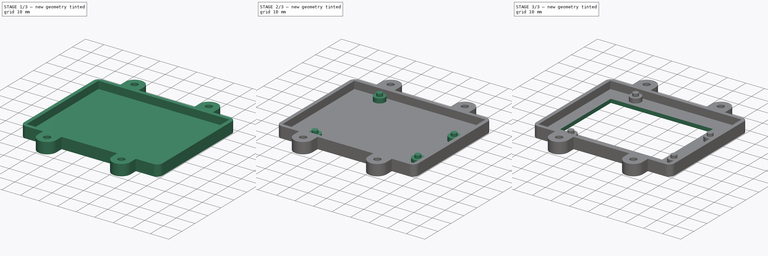
[diagram: build sequence overview — one tinted view per stage of 3, left to right]
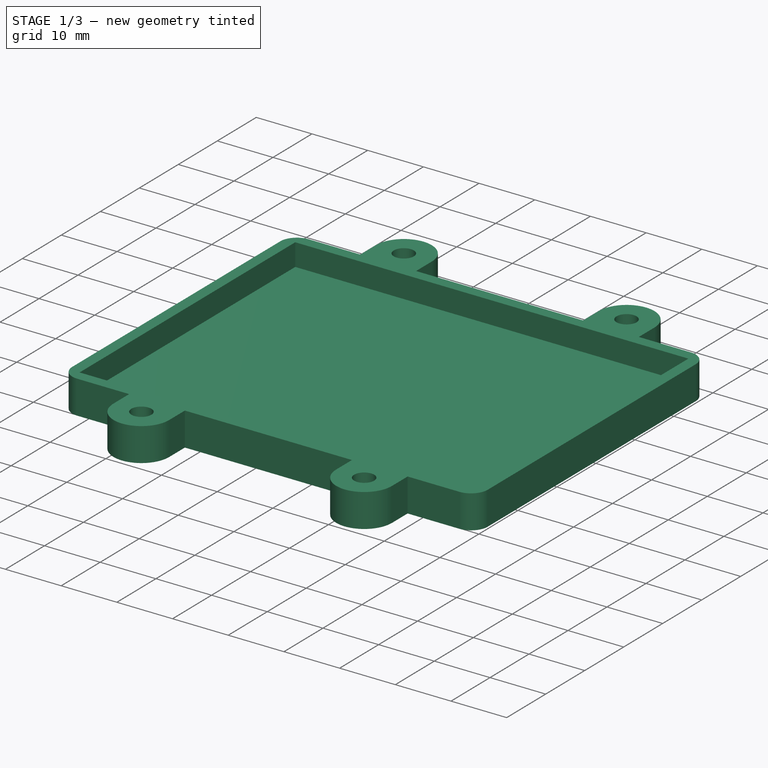
[diagram: stage 1 of 3 — iso view after this stage's code; geometry added in this stage tinted green]
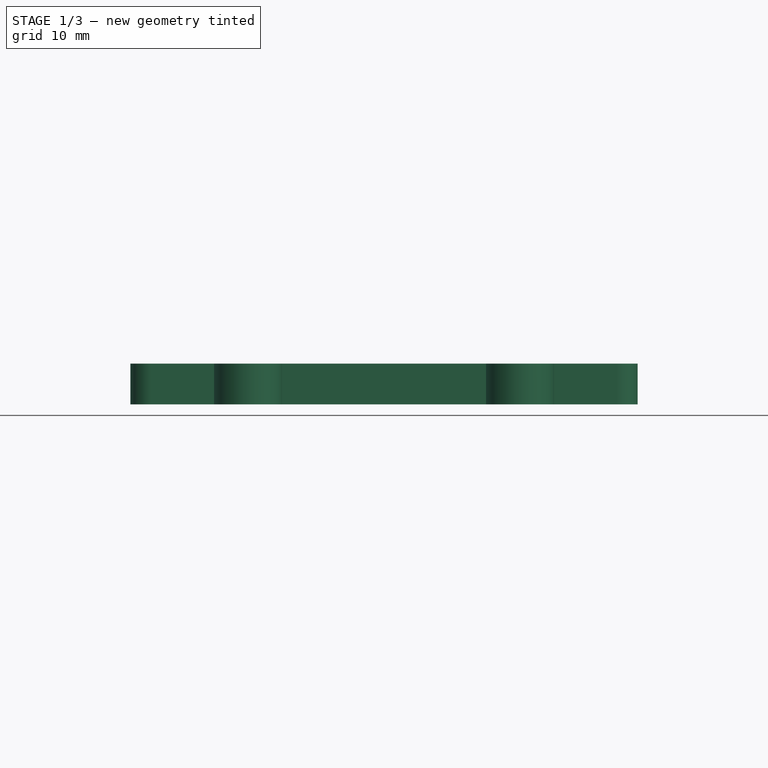
[diagram: stage 1 of 3 — front view after this stage's code; geometry added in this stage tinted green]
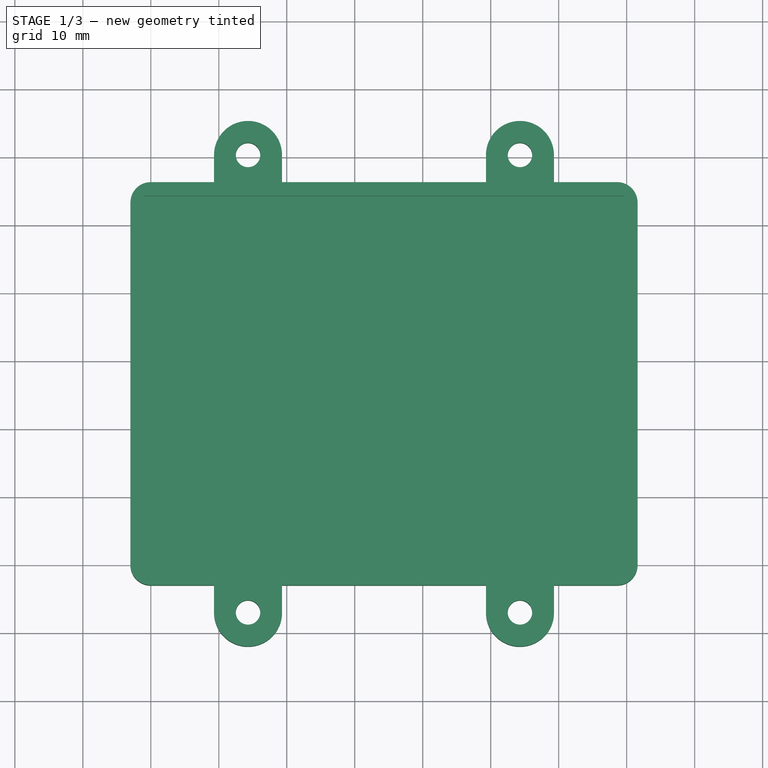
[diagram: stage 1 of 3 — top view after this stage's code; geometry added in this stage tinted green]
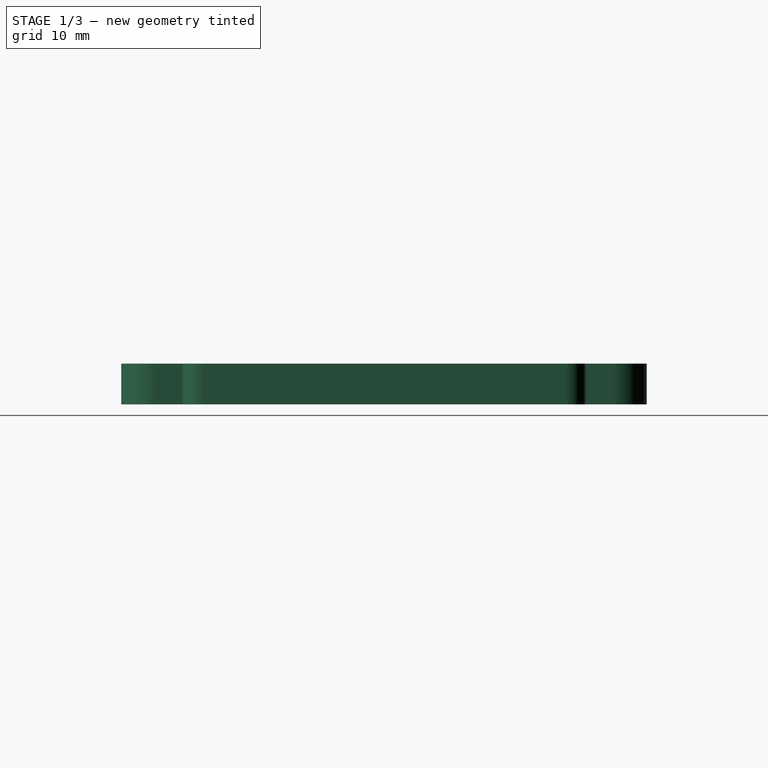
[diagram: stage 1 of 3 — right view after this stage's code; geometry added in this stage tinted green]
FCSTD DOCUMENT
Label: UnoCaseBottom
objects: Sketcher::SketchObject×7, PartDesign::Pocket×4, PartDesign::Pad×3
note: 17 computed .brp shape members not serialized (recipe doc carries the construction recipe); baked Part::Feature solids carry a one-line shape summary decoded from their .brp

FEATURE [Sketcher::SketchObject] Sketch
  sketch-geometry (44):
    g0: ArcOfCircle CenterX=0 CenterY=0 CenterZ=0 NormalX=0 NormalY=0 NormalZ=1 Radius=3 StartAngle=3.14159 EndAngle=4.71239
    g1: ArcOfCircle CenterX=0 CenterY=53.3 CenterZ=0 NormalX=0 NormalY=0 NormalZ=1 Radius=3 StartAngle=1.5708 EndAngle=3.14159
    g2: ArcOfCircle CenterX=68.6 CenterY=53.3 CenterZ=0 NormalX=0 NormalY=0 NormalZ=1 Radius=3 StartAngle=0 EndAngle=1.5708
    g3: ArcOfCircle CenterX=68.6 CenterY=0 CenterZ=0 NormalX=0 NormalY=0 NormalZ=1 Radius=3 StartAngle=4.71239 EndAngle=6.28319
    g4: LineSegment StartX=-3 StartY=53.3 StartZ=0 EndX=-3 EndY=0 EndZ=0
    g5: LineSegment [constr] StartX=68.6 StartY=-3 StartZ=0 EndX=68.6 EndY=0 EndZ=0
    g6: LineSegment [constr] StartX=68.6 StartY=0 StartZ=0 EndX=71.6 EndY=0 EndZ=0
    g7: LineSegment StartX=71.6 StartY=0 StartZ=0 EndX=71.6 EndY=53.3 EndZ=0
    g8: LineSegment [constr] StartX=71.6 StartY=53.3 StartZ=0 EndX=68.6 EndY=53.3 EndZ=0
    g9: LineSegment [constr] StartX=68.6 StartY=53.3 StartZ=0 EndX=68.6 EndY=56.3 EndZ=0
    g10: LineSegment [constr] StartX=0 StartY=56.3 StartZ=0 EndX=0 EndY=53.3 EndZ=0
    g11: LineSegment [constr] StartX=0 StartY=53.3 StartZ=0 EndX=-3 EndY=53.3 EndZ=0
    g12: LineSegment [constr] StartX=-3 StartY=0 StartZ=0 EndX=0 EndY=0 EndZ=0
    g13: LineSegment [constr] StartX=0 StartY=0 StartZ=0 EndX=0 EndY=-3 EndZ=0
    g14: LineSegment StartX=0 StartY=-3 StartZ=0 EndX=9.3 EndY=-3 EndZ=0
    g15: LineSegment StartX=9.3 StartY=-3 StartZ=0 EndX=9.3 EndY=-7 EndZ=0
    g16: LineSegment [constr] StartX=9.3 StartY=-7 StartZ=0 EndX=19.3 EndY=-7 EndZ=0
    g17: LineSegment StartX=19.3 StartY=-7 StartZ=0 EndX=19.3 EndY=-3 EndZ=0
    g18: LineSegment StartX=19.3 StartY=-3 StartZ=0 EndX=49.3 EndY=-3 EndZ=0
    g19: LineSegment StartX=49.3 StartY=-3 StartZ=0 EndX=49.3 EndY=-7 EndZ=0
    g20: LineSegment [constr] StartX=49.3 StartY=-7 StartZ=0 EndX=59.3 EndY=-7 EndZ=0
    g21: LineSegment StartX=59.3 StartY=-7 StartZ=0 EndX=59.3 EndY=-3 EndZ=0
    g22: LineSegment StartX=59.3 StartY=-3 StartZ=0 EndX=68.6 EndY=-3 EndZ=0
    g23: LineSegment [constr] StartX=49.3 StartY=-3 StartZ=0 EndX=59.3 EndY=-3 EndZ=0
    g24: LineSegment [constr] StartX=9.3 StartY=-3 StartZ=0 EndX=19.3 EndY=-3 EndZ=0
    g25: ArcOfCircle CenterX=54.3 CenterY=-7 CenterZ=0 NormalX=0 NormalY=0 NormalZ=1 Radius=5 StartAngle=3.14159 EndAngle=6.28319
    g26: ArcOfCircle CenterX=14.3 CenterY=-7 CenterZ=0 NormalX=0 NormalY=0 NormalZ=1 Radius=5 StartAngle=3.14159 EndAngle=6.28319
    g27: Circle CenterX=14.3 CenterY=-7 CenterZ=0 NormalX=0 NormalY=0 NormalZ=1 Radius=1.8
    g28: Circle CenterX=54.3 CenterY=-7 CenterZ=0 NormalX=0 NormalY=0 NormalZ=1 Radius=1.8
    g29: LineSegment StartX=0 StartY=56.3 StartZ=0 EndX=9.3 EndY=56.3 EndZ=0
    g30: LineSegment StartX=9.3 StartY=56.3 StartZ=0 EndX=9.3 EndY=60.3 EndZ=0
    g31: LineSegment [constr] StartX=9.3 StartY=60.3 StartZ=0 EndX=19.3 EndY=60.3 EndZ=0
    g32: LineSegment StartX=19.3 StartY=60.3 StartZ=0 EndX=19.3 EndY=56.3 EndZ=0
    g33: LineSegment StartX=19.3 StartY=56.3 StartZ=0 EndX=49.3 EndY=56.3 EndZ=0
    g34: LineSegment StartX=49.3 StartY=56.3 StartZ=0 EndX=49.3 EndY=60.3 EndZ=0
    g35: LineSegment [constr] StartX=49.3 StartY=60.3 StartZ=0 EndX=59.3 EndY=60.3 EndZ=0
    g36: LineSegment StartX=59.3 StartY=60.3 StartZ=0 EndX=59.3 EndY=56.3 EndZ=0
    g37: LineSegment StartX=59.3 StartY=56.3 StartZ=0 EndX=68.6 EndY=56.3 EndZ=0
    g38: LineSegment [constr] StartX=49.3 StartY=56.3 StartZ=0 EndX=59.3 EndY=56.3 EndZ=0
    g39: LineSegment [constr] StartX=9.3 StartY=56.3 StartZ=0 EndX=19.3 EndY=56.3 EndZ=0
    g40: ArcOfCircle CenterX=14.3 CenterY=60.3 CenterZ=0 NormalX=0 NormalY=0 NormalZ=1 Radius=5 StartAngle=0 EndAngle=3.14159
    g41: ArcOfCircle CenterX=54.3 CenterY=60.3 CenterZ=0 NormalX=0 NormalY=0 NormalZ=1 Radius=5 StartAngle=0 EndAngle=3.14159
    g42: Circle CenterX=54.3 CenterY=60.3 CenterZ=0 NormalX=0 NormalY=0 NormalZ=1 Radius=1.8
    g43: Circle CenterX=14.3 CenterY=60.3 CenterZ=0 NormalX=0 NormalY=0 NormalZ=1 Radius=1.8
  constraints (120):
    c: Coincident(g4,g1)
    c: Coincident(g4,g0)
    c: Vertical(g4)
    c: Coincident(g5,g3)
    c: Vertical(g5)
    c: Coincident(g5,g6)
    c: Coincident(g6,g3)
    c: Horizontal(g6)
    c: Coincident(g6,g7)
    c: Coincident(g7,g2)
    c: Vertical(g7)
    c: Coincident(g7,g8)
    c: Coincident(g8,g2)
    c: Horizontal(g8)
    c: Coincident(g8,g9)
    c: Coincident(g9,g2)
    c: Vertical(g9)
    c: Coincident(g10,g1)
    c: Vertical(g10)
    c: Coincident(g10,g11)
    c: Coincident(g11,g1)
    c: Horizontal(g11)
    c: Coincident(g12,g0)
    c: Coincident(g12,g0)
    c: Horizontal(g12)
    c: Coincident(g12,g13)
    c: Coincident(g13,g0)
    c: Vertical(g13)
    c: Equal(g3,g2)
    c: Equal(g2,g1)
    c: Equal(g1,g0)
    c: Radius(g0) = 3
    c: DistanceY(g0) = -3
    c: DistanceX(g0) = -3
    c: DistanceY(g2,g3) = -59.3
    c: DistanceX(g1,g2) = 74.6
    c: Horizontal(g14)
    c: Coincident(g14,g15)
    c: Vertical(g15)
    c: Coincident(g15,g16)
    c: Horizontal(g16)
    c: Coincident(g16,g17)
    c: Vertical(g17)
    c: Coincident(g17,g18)
    c: Horizontal(g18)
    c: Coincident(g18,g19)
    c: Vertical(g19)
    c: Coincident(g19,g20)
    c: Horizontal(g20)
    c: Coincident(g20,g21)
    c: Vertical(g21)
    c: Coincident(g21,g22)
    c: Horizontal(g22)
    c: Coincident(g23,g18)
    c: Coincident(g23,g21)
    c: Horizontal(g23)
    c: Coincident(g24,g14)
    c: Coincident(g24,g17)
    c: Horizontal(g24)
    c: PointOnObject(g25,g20)
    c: Coincident(g25,g19)
    c: Coincident(g25,g20)
    c: PointOnObject(g26,g16)
    c: Coincident(g26,g15)
    c: Coincident(g26,g16)
    c: Equal(g25,g26)
    c: Equal(g14,g22)
    c: Radius(g26) = 5
    c: DistanceY(g15) = -4
    c: Equal(g15,g19)
    c: Coincident(g14,g0)
    c: Coincident(g22,g3)
    c: Coincident(g5,g3)
    c: DistanceX(g26,g25) = 40
    c: Coincident(g27,g26)
    c: Coincident(g28,g25)
    c: Equal(g28,g27)
    c: Radius(g28) = 1.8
    c: Horizontal(g29)
    c: Coincident(g29,g30)
    c: Vertical(g30)
    c: Coincident(g30,g31)
    c: Horizontal(g31)
    c: Coincident(g31,g32)
    c: Vertical(g32)
    c: Coincident(g32,g33)
    c: Horizontal(g33)
    c: Coincident(g33,g34)
    c: Vertical(g34)
    c: Coincident(g34,g35)
    c: Horizontal(g35)
    c: Coincident(g35,g36)
    c: Vertical(g36)
    c: Coincident(g36,g37)
    c: Horizontal(g37)
    c: Coincident(g38,g33)
    c: Coincident(g38,g36)
    c: Horizontal(g38)
    c: Coincident(g39,g29)
    c: Coincident(g39,g32)
    c: Horizontal(g39)
    c: PointOnObject(g40,g31)
    c: Coincident(g40,g30)
    c: Coincident(g40,g31)
    c: PointOnObject(g41,g35)
    c: Coincident(g41,g34)
    c: Coincident(g41,g35)
    c: Equal(g34,g32)
    c: Equal(g29,g37)
    c: Equal(g40,g41)
    c: Radius(g40) = 5
    c: DistanceY(g30) = 4
    c: Coincident(g29,g1)
    c: Coincident(g10,g1)
    c: Coincident(g2,g37)
    c: DistanceX(g40,g41) = 40
    c: Coincident(g42,g41)
    c: Coincident(g43,g40)
    c: Equal(g43,g42)
    c: Equal(g42,g28)
FEATURE [PartDesign::Pad] Pad
  Length = 6
  MirroredExtent = false
  Sketch = -> Sketch
FEATURE [Sketcher::SketchObject] Sketch001
  Placement = pos=(0,0,6) rot=(0,0,1;0rad)
  Support = -> Pad [Face30]
  sketch-geometry (4):
    g0: LineSegment StartX=-1 StartY=-1 StartZ=0 EndX=69.6 EndY=-1 EndZ=0
    g1: LineSegment StartX=69.6 StartY=-1 StartZ=0 EndX=69.6 EndY=54.3 EndZ=0
    g2: LineSegment StartX=69.6 StartY=54.3 StartZ=0 EndX=-1 EndY=54.3 EndZ=0
    g3: LineSegment StartX=-1 StartY=54.3 StartZ=0 EndX=-1 EndY=-1 EndZ=0
  constraints (12):
    c: Coincident(g0,g1)
    c: Coincident(g1,g2)
    c: Coincident(g2,g3)
    c: Coincident(g3,g0)
    c: Horizontal(g0)
    c: Horizontal(g2)
    c: Vertical(g1)
    c: Vertical(g3)
    c: DistanceX(g2) = -70.6
    c: DistanceX(g0) = -1
    c: DistanceY(g0) = -1
    c: DistanceY(g1) = 55.3
FEATURE [PartDesign::Pocket] Pocket
  Length = 4
  Sketch = -> Sketch001
  Type = 0
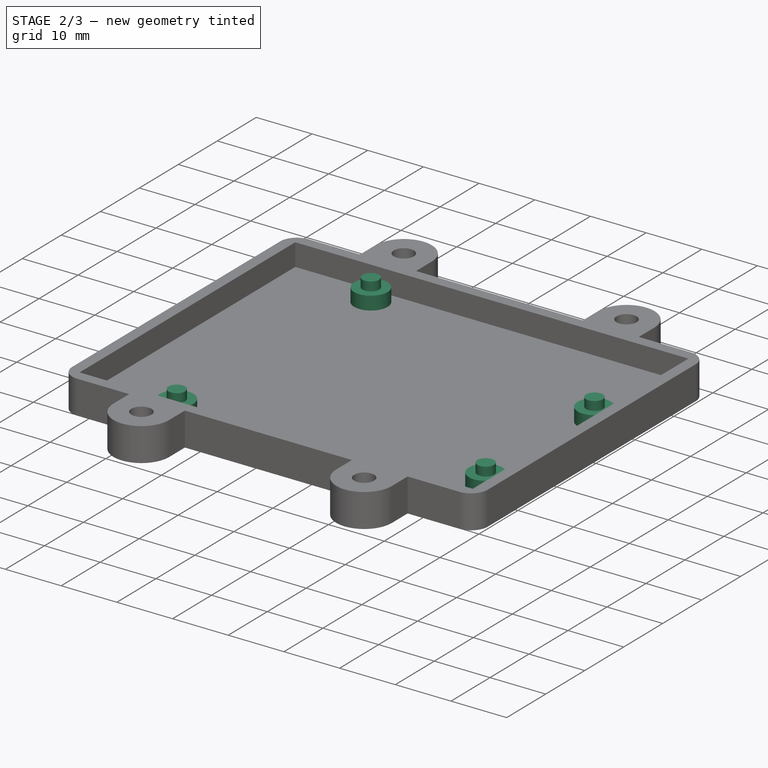
[diagram: stage 2 of 3 — iso view after this stage's code; geometry added in this stage tinted green]
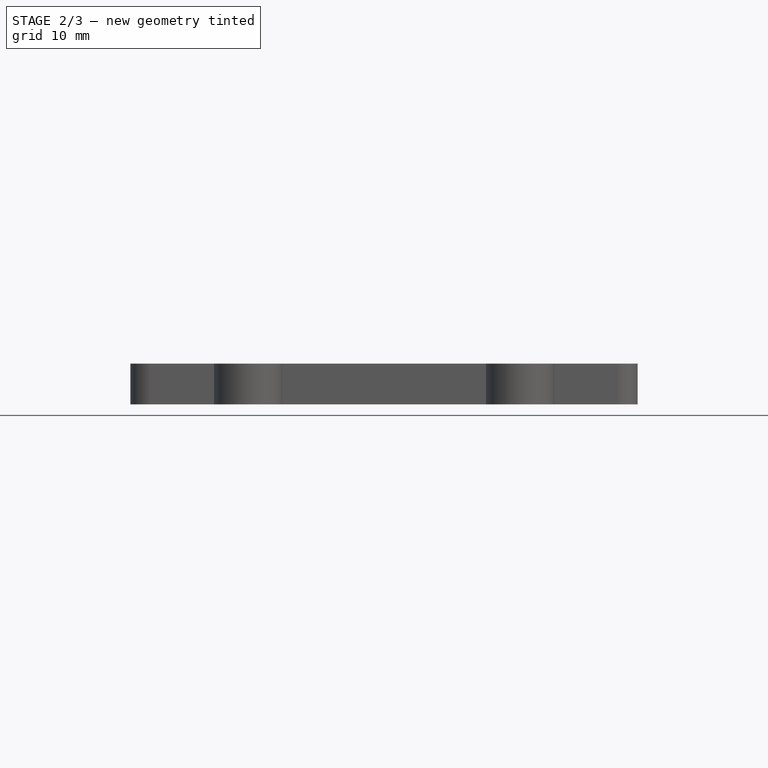
[diagram: stage 2 of 3 — front view after this stage's code; geometry added in this stage tinted green]
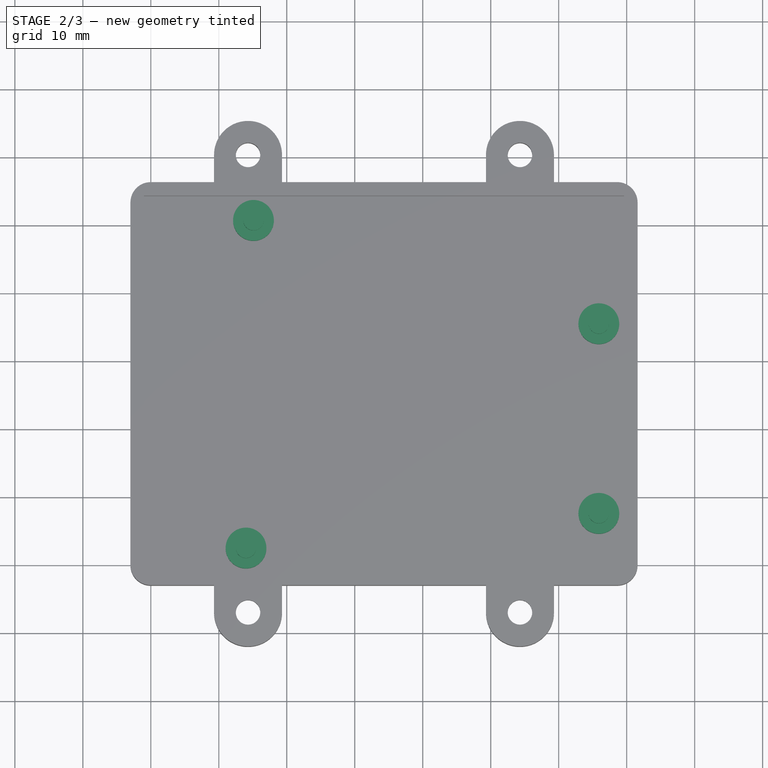
[diagram: stage 2 of 3 — top view after this stage's code; geometry added in this stage tinted green]
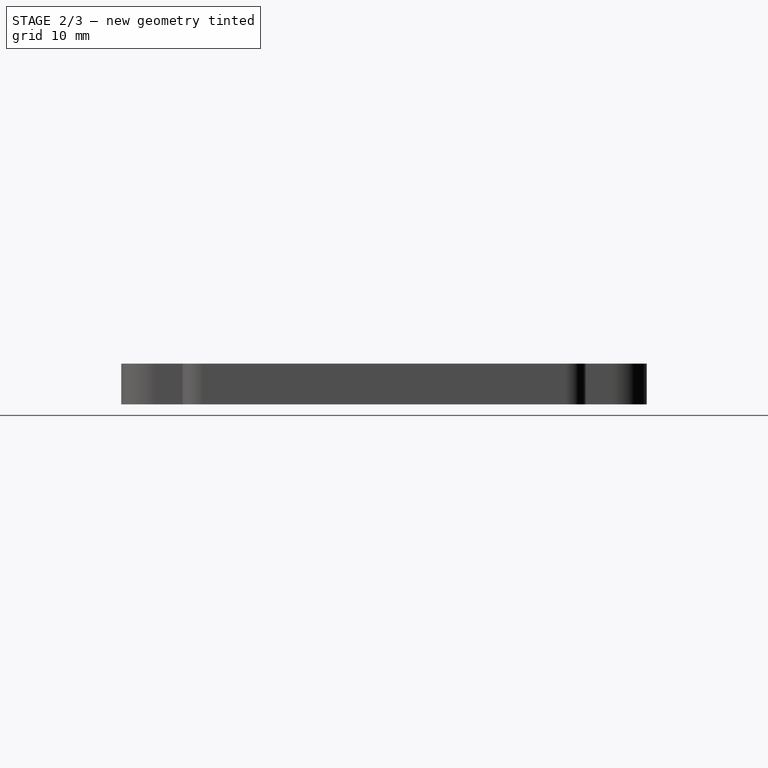
[diagram: stage 2 of 3 — right view after this stage's code; geometry added in this stage tinted green]
FEATURE [Sketcher::SketchObject] Sketch002
  Placement = pos=(0,0,2) rot=(0,0,1;0rad)
  Support = -> Pocket [Face35]
  sketch-geometry (5):
    g0: Circle CenterX=15.1 CenterY=50.7 CenterZ=0 NormalX=0 NormalY=0 NormalZ=1 Radius=3
    g1: Circle CenterX=14 CenterY=2.5 CenterZ=0 NormalX=0 NormalY=0 NormalZ=1 Radius=3
    g2: Circle CenterX=65.9 CenterY=35.5 CenterZ=0 NormalX=0 NormalY=0 NormalZ=1 Radius=3
    g3: Circle CenterX=65.9 CenterY=7.6 CenterZ=0 NormalX=0 NormalY=0 NormalZ=1 Radius=3
    g4: LineSegment [constr] StartX=65.9 StartY=35.5 StartZ=0 EndX=65.9 EndY=7.6 EndZ=0
  constraints (14):
    c: DistanceX(g1,g3) = 51.9
    c: DistanceX(g0,g2) = 50.8
    c: Equal(g0,g1)
    c: Equal(g1,g3)
    c: Equal(g3,g2)
    c: Radius(g0) = 3
    c: DistanceY(g2,g3) = -27.9
    c: DistanceY(g0,g2) = -15.2
    c: Coincident(g4,g3)
    c: Vertical(g4)
    c: Coincident(g2,g4)
    c: DistanceY(g1,g3) = 5.1
    c: DistanceX(g1) = 14
    c: DistanceY(g1) = 2.5
FEATURE [PartDesign::Pad] Pad001
  Length = 2.4
  MirroredExtent = false
  Sketch = -> Sketch002
FEATURE [Sketcher::SketchObject] Sketch003
  Placement = pos=(0,0,4.4) rot=(0,0,1;0rad)
  Support = -> Pad001 [Face42]
  sketch-geometry (5):
    g0: Circle CenterX=15.1 CenterY=50.7 CenterZ=0 NormalX=0 NormalY=0 NormalZ=1 Radius=1.5
    g1: Circle CenterX=14 CenterY=2.5 CenterZ=0 NormalX=0 NormalY=0 NormalZ=1 Radius=1.5
    g2: Circle CenterX=65.9 CenterY=35.5 CenterZ=0 NormalX=0 NormalY=0 NormalZ=1 Radius=1.5
    g3: Circle CenterX=65.9 CenterY=7.6 CenterZ=0 NormalX=0 NormalY=0 NormalZ=1 Radius=1.5
    g4: LineSegment [constr] StartX=65.9 StartY=35.5 StartZ=0 EndX=65.9 EndY=7.6 EndZ=0
  constraints (14):
    c: DistanceX(g1,g3) = 51.9
    c: DistanceX(g0,g2) = 50.8
    c: Equal(g0,g1)
    c: Equal(g1,g3)
    c: Equal(g3,g2)
    c: Radius(g0) = 1.5
    c: DistanceY(g2,g3) = -27.9
    c: DistanceY(g0,g2) = -15.2
    c: Coincident(g4,g3)
    c: Vertical(g4)
    c: Coincident(g2,g4)
    c: DistanceY(g1,g3) = 5.1
    c: DistanceX(g1) = 14
    c: DistanceY(g1) = 2.5
FEATURE [PartDesign::Pad] Pad002
  Length = 1.6
  MirroredExtent = false
  Sketch = -> Sketch003
FEATURE [Sketcher::SketchObject] Sketch004
  Placement = pos=(0,0,0) rot=(1,0,0;3.14159rad)
  Support = -> Pad002 [Face4]
  sketch-geometry (24):
    g0: LineSegment StartX=11.35 StartY=5.29682 StartZ=0 EndX=11.35 EndY=8.70318 EndZ=0
    g1: LineSegment StartX=11.35 StartY=8.70318 StartZ=0 EndX=14.3 EndY=10.4064 EndZ=0
    g2: LineSegment StartX=14.3 StartY=10.4064 StartZ=0 EndX=17.25 EndY=8.70318 EndZ=0
    g3: LineSegment StartX=17.25 StartY=8.70318 StartZ=0 EndX=17.25 EndY=5.29682 EndZ=0
    g4: LineSegment StartX=17.25 StartY=5.29682 StartZ=0 EndX=14.3 EndY=3.59363 EndZ=0
    g5: LineSegment StartX=14.3 StartY=3.59363 StartZ=0 EndX=11.35 EndY=5.29682 EndZ=0
    g6: LineSegment [constr] StartX=11.35 StartY=5.29682 StartZ=0 EndX=14.3 EndY=7 EndZ=0
    g7: LineSegment [constr] StartX=14.3 StartY=7 StartZ=0 EndX=17.25 EndY=5.29682 EndZ=0
    g8: LineSegment [constr] StartX=11.35 StartY=8.70318 StartZ=0 EndX=14.3 EndY=7 EndZ=0
    g9: LineSegment [constr] StartX=14.3 StartY=7 StartZ=0 EndX=17.25 EndY=8.70318 EndZ=0
    g10: LineSegment [constr] StartX=14.3 StartY=7 StartZ=0 EndX=14.3 EndY=3.59363 EndZ=0
    g11: LineSegment StartX=51.35 StartY=5.29682 StartZ=0 EndX=51.35 EndY=8.70318 EndZ=0
    g12: LineSegment StartX=51.35 StartY=8.70318 StartZ=0 EndX=54.3 EndY=10.4064 EndZ=0
    g13: LineSegment StartX=54.3 StartY=10.4064 StartZ=0 EndX=57.25 EndY=8.70318 EndZ=0
    g14: LineSegment StartX=57.25 StartY=8.70318 StartZ=0 EndX=57.25 EndY=5.29682 EndZ=0
    g15: LineSegment StartX=57.25 StartY=5.29682 StartZ=0 EndX=54.3 EndY=3.59363 EndZ=0
    g16: LineSegment StartX=54.3 StartY=3.59363 StartZ=0 EndX=51.35 EndY=5.29682 EndZ=0
    g17: LineSegment [constr] StartX=51.35 StartY=8.70318 StartZ=0 EndX=54.3 EndY=7 EndZ=0
    g18: LineSegment [constr] StartX=54.3 StartY=7 StartZ=0 EndX=57.25 EndY=8.70318 EndZ=0
    g19: LineSegment [constr] StartX=51.35 StartY=5.29682 StartZ=0 EndX=54.3 EndY=7 EndZ=0
    g20: LineSegment [constr] StartX=54.3 StartY=7 StartZ=0 EndX=57.25 EndY=5.29682 EndZ=0
    g21: LineSegment [constr] StartX=54.3 StartY=7 StartZ=0 EndX=54.3 EndY=3.59363 EndZ=0
    g22: LineSegment [constr] StartX=14.3 StartY=7 StartZ=0 EndX=34.3 EndY=7 EndZ=0
    g23: LineSegment [constr] StartX=34.3 StartY=7 StartZ=0 EndX=54.3 EndY=7 EndZ=0
  constraints (63):
    c: Vertical(g0)
    c: Coincident(g0,g1)
    c: Coincident(g1,g2)
    c: Coincident(g2,g3)
    c: Vertical(g3)
    c: Coincident(g3,g4)
    c: Coincident(g4,g5)
    c: Coincident(g5,g6)
    c: Coincident(g6,g7)
    c: Coincident(g7,g3)
    c: Coincident(g8,g0)
    c: Coincident(g8,g6)
    c: Coincident(g8,g9)
    c: Coincident(g9,g2)
    c: Coincident(g10,g6)
    c: Coincident(g10,g4)
    c: Vertical(g10)
    c: Equal(g8,g6)
    c: Equal(g6,g10)
    c: Equal(g10,g7)
    c: Equal(g7,g9)
    c: Coincident(g5,g0)
    c: Equal(g5,g4)
    c: Equal(g4,g3)
    c: Equal(g3,g2)
    c: Equal(g2,g1)
    c: DistanceX(g0,g3) = 5.9
    c: Vertical(g11)
    c: Coincident(g11,g12)
    c: Coincident(g12,g13)
    c: Coincident(g13,g14)
    c: Vertical(g14)
    c: Coincident(g14,g15)
    c: Coincident(g15,g16)
    c: Coincident(g16,g11)
    c: Coincident(g17,g11)
    c: Coincident(g17,g18)
    c: Coincident(g18,g13)
    c: Coincident(g19,g11)
    c: Coincident(g19,g17)
    c: Coincident(g19,g20)
    c: Coincident(g20,g14)
    c: Coincident(g21,g17)
    c: Coincident(g21,g15)
    c: Vertical(g21)
    c: Equal(g17,g19)
    c: Equal(g19,g21)
    c: Equal(g21,g20)
    c: Equal(g20,g18)
    c: Equal(g13,g12)
    c: Equal(g12,g11)
    c: Equal(g11,g16)
    c: Equal(g16,g14)
    c: DistanceX(g11,g14) = 5.9
    c: Coincident(g22,g6)
    c: Horizontal(g22)
    c: Coincident(g22,g23)
    c: Coincident(g23,g17)
    c: Horizontal(g23)
    c: Equal(g22,g23)
    c: DistanceX(g22) = 34.3
    c: DistanceY(g22) = 7
    c: DistanceX(g6,g17) = 40
FEATURE [PartDesign::Pocket] Pocket001
  Length = 3
  Sketch = -> Sketch004
  Type = 0
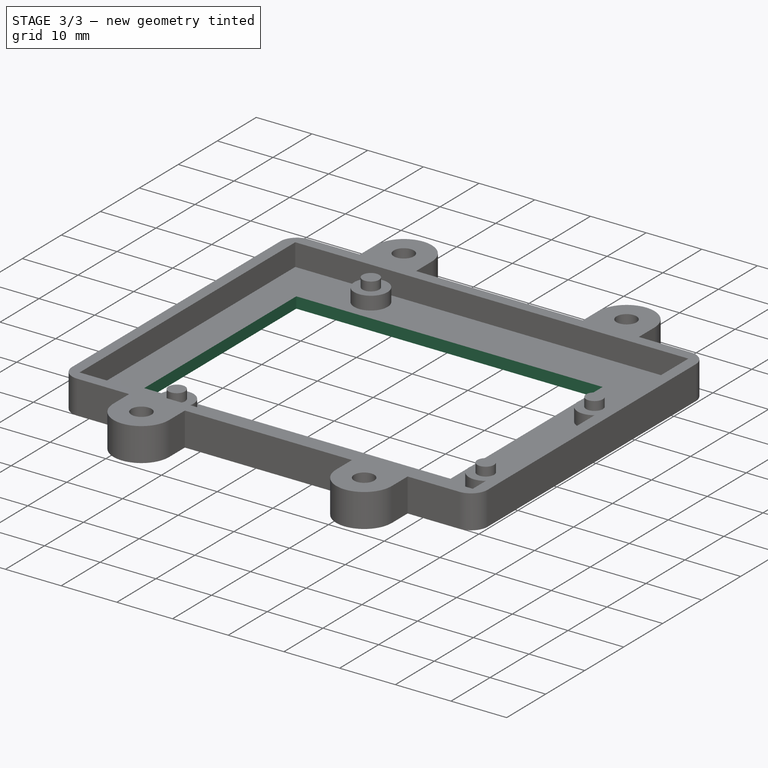
[diagram: stage 3 of 3 — iso view after this stage's code; geometry added in this stage tinted green]
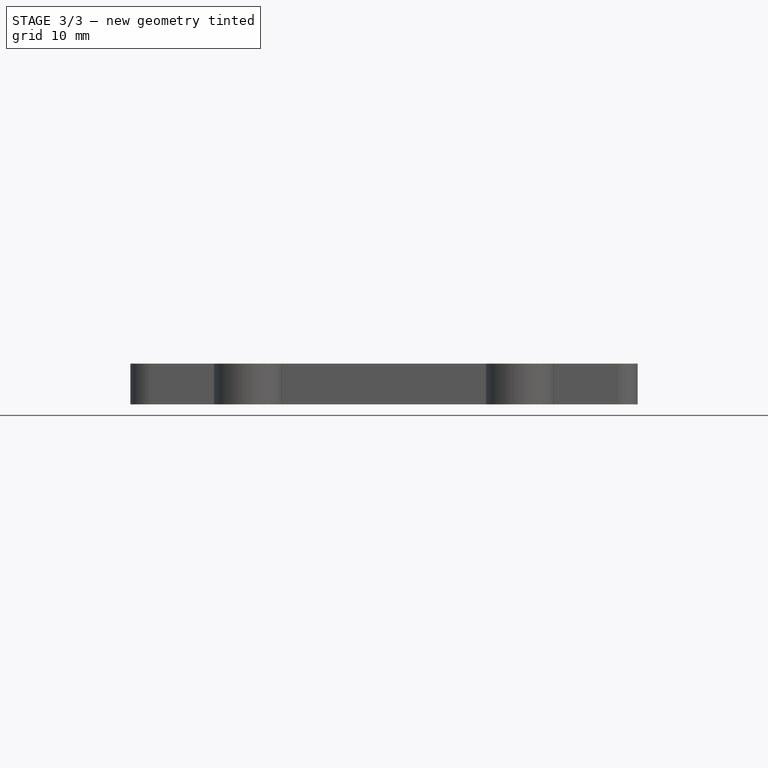
[diagram: stage 3 of 3 — front view after this stage's code; geometry added in this stage tinted green]
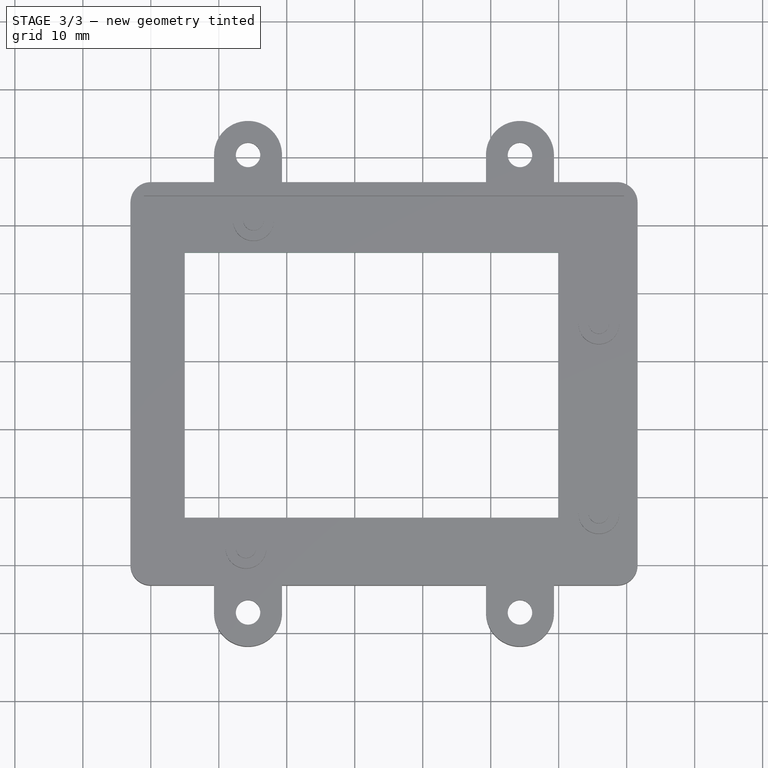
[diagram: stage 3 of 3 — top view after this stage's code; geometry added in this stage tinted green]
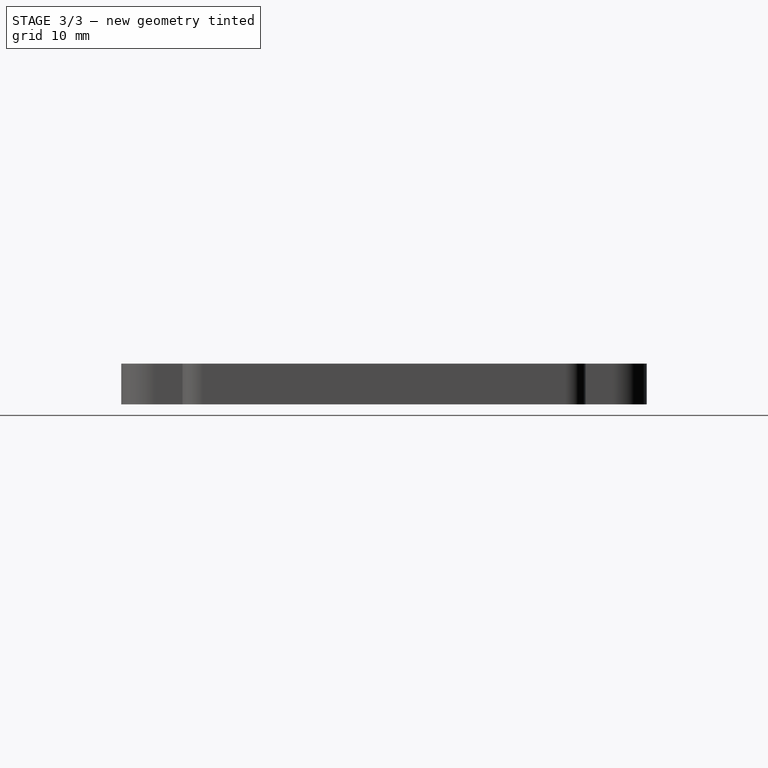
[diagram: stage 3 of 3 — right view after this stage's code; geometry added in this stage tinted green]
FEATURE [Sketcher::SketchObject] Sketch005
  Placement = pos=(0,0,0) rot=(1,0,0;3.14159rad)
  Support = -> Pocket001 [Face4]
  sketch-geometry (24):
    g0: LineSegment StartX=11.35 StartY=-62.0032 StartZ=0 EndX=11.35 EndY=-58.5968 EndZ=0
    g1: LineSegment StartX=11.35 StartY=-58.5968 StartZ=0 EndX=14.3 EndY=-56.8936 EndZ=0
    g2: LineSegment StartX=14.3 StartY=-56.8936 StartZ=0 EndX=17.25 EndY=-58.5968 EndZ=0
    g3: LineSegment StartX=17.25 StartY=-58.5968 StartZ=0 EndX=17.25 EndY=-62.0032 EndZ=0
    g4: LineSegment StartX=17.25 StartY=-62.0032 StartZ=0 EndX=14.3 EndY=-63.7064 EndZ=0
    g5: LineSegment StartX=14.3 StartY=-63.7064 StartZ=0 EndX=11.35 EndY=-62.0032 EndZ=0
    g6: LineSegment [constr] StartX=11.35 StartY=-62.0032 StartZ=0 EndX=14.3 EndY=-60.3 EndZ=0
    g7: LineSegment [constr] StartX=14.3 StartY=-60.3 StartZ=0 EndX=17.25 EndY=-62.0032 EndZ=0
    g8: LineSegment [constr] StartX=11.35 StartY=-58.5968 StartZ=0 EndX=14.3 EndY=-60.3 EndZ=0
    g9: LineSegment [constr] StartX=14.3 StartY=-60.3 StartZ=0 EndX=17.25 EndY=-58.5968 EndZ=0
    g10: LineSegment [constr] StartX=14.3 StartY=-60.3 StartZ=0 EndX=14.3 EndY=-63.7064 EndZ=0
    g11: LineSegment StartX=51.35 StartY=-62.0032 StartZ=0 EndX=51.35 EndY=-58.5968 EndZ=0
    g12: LineSegment StartX=51.35 StartY=-58.5968 StartZ=0 EndX=54.3 EndY=-56.8936 EndZ=0
    g13: LineSegment StartX=54.3 StartY=-56.8936 StartZ=0 EndX=57.25 EndY=-58.5968 EndZ=0
    g14: LineSegment StartX=57.25 StartY=-58.5968 StartZ=0 EndX=57.25 EndY=-62.0032 EndZ=0
    g15: LineSegment StartX=57.25 StartY=-62.0032 StartZ=0 EndX=54.3 EndY=-63.7064 EndZ=0
    g16: LineSegment StartX=54.3 StartY=-63.7064 StartZ=0 EndX=51.35 EndY=-62.0032 EndZ=0
    g17: LineSegment [constr] StartX=51.35 StartY=-58.5968 StartZ=0 EndX=54.3 EndY=-60.3 EndZ=0
    g18: LineSegment [constr] StartX=54.3 StartY=-60.3 StartZ=0 EndX=57.25 EndY=-58.5968 EndZ=0
    g19: LineSegment [constr] StartX=51.35 StartY=-62.0032 StartZ=0 EndX=54.3 EndY=-60.3 EndZ=0
    g20: LineSegment [constr] StartX=54.3 StartY=-60.3 StartZ=0 EndX=57.25 EndY=-62.0032 EndZ=0
    g21: LineSegment [constr] StartX=54.3 StartY=-60.3 StartZ=0 EndX=54.3 EndY=-63.7064 EndZ=0
    g22: LineSegment [constr] StartX=14.3 StartY=-60.3 StartZ=0 EndX=34.3 EndY=-60.3 EndZ=0
    g23: LineSegment [constr] StartX=34.3 StartY=-60.3 StartZ=0 EndX=54.3 EndY=-60.3 EndZ=0
  constraints (63):
    c: Vertical(g0)
    c: Coincident(g0,g1)
    c: Coincident(g1,g2)
    c: Coincident(g2,g3)
    c: Vertical(g3)
    c: Coincident(g3,g4)
    c: Coincident(g4,g5)
    c: Coincident(g5,g6)
    c: Coincident(g6,g7)
    c: Coincident(g7,g3)
    c: Coincident(g8,g0)
    c: Coincident(g8,g6)
    c: Coincident(g8,g9)
    c: Coincident(g9,g2)
    c: Coincident(g10,g6)
    c: Coincident(g10,g4)
    c: Vertical(g10)
    c: Equal(g8,g6)
    c: Equal(g6,g10)
    c: Equal(g10,g7)
    c: Equal(g7,g9)
    c: Coincident(g5,g0)
    c: Equal(g5,g4)
    c: Equal(g4,g3)
    c: Equal(g3,g2)
    c: Equal(g2,g1)
    c: DistanceX(g0,g3) = 5.9
    c: Vertical(g11)
    c: Coincident(g11,g12)
    c: Coincident(g12,g13)
    c: Coincident(g13,g14)
    c: Vertical(g14)
    c: Coincident(g14,g15)
    c: Coincident(g15,g16)
    c: Coincident(g16,g11)
    c: Coincident(g17,g11)
    c: Coincident(g17,g18)
    c: Coincident(g18,g13)
    c: Coincident(g19,g11)
    c: Coincident(g19,g17)
    c: Coincident(g19,g20)
    c: Coincident(g20,g14)
    c: Coincident(g21,g17)
    c: Coincident(g21,g15)
    c: Vertical(g21)
    c: Equal(g17,g19)
    c: Equal(g19,g21)
    c: Equal(g21,g20)
    c: Equal(g20,g18)
    c: Equal(g13,g12)
    c: Equal(g12,g11)
    c: Equal(g11,g16)
    c: Equal(g16,g14)
    c: DistanceX(g11,g14) = 5.9
    c: Coincident(g22,g6)
    c: Horizontal(g22)
    c: Coincident(g22,g23)
    c: Coincident(g23,g17)
    c: Horizontal(g23)
    c: Equal(g22,g23)
    c: DistanceX(g6,g17) = 40
    c: DistanceX(g22) = 34.3
    c: DistanceY(g22) = -60.3
FEATURE [PartDesign::Pocket] Pocket002
  Length = 3
  Sketch = -> Sketch005
  Type = 0
FEATURE [Sketcher::SketchObject] Sketch006
  Placement = pos=(0,0,2) rot=(0,0,1;0rad)
  Support = -> Pocket002 [Face63]
  sketch-geometry (4):
    g0: LineSegment StartX=60 StartY=46 StartZ=0 EndX=5 EndY=46 EndZ=0
    g1: LineSegment StartX=5 StartY=46 StartZ=0 EndX=5 EndY=7 EndZ=0
    g2: LineSegment StartX=5 StartY=7 StartZ=0 EndX=60 EndY=7 EndZ=0
    g3: LineSegment StartX=60 StartY=7 StartZ=0 EndX=60 EndY=46 EndZ=0
  constraints (12):
    c: Coincident(g0,g1)
    c: Coincident(g1,g2)
    c: Coincident(g2,g3)
    c: Coincident(g3,g0)
    c: Horizontal(g0)
    c: Horizontal(g2)
    c: Vertical(g1)
    c: Vertical(g3)
    c: DistanceY(g1) = -39
    c: DistanceX(g2) = 55
    c: DistanceX(g1) = 5
    c: DistanceY(g1) = 7
FEATURE [PartDesign::Pocket] Pocket003
  Length = 5
  Sketch = -> Sketch006
  Type = 0
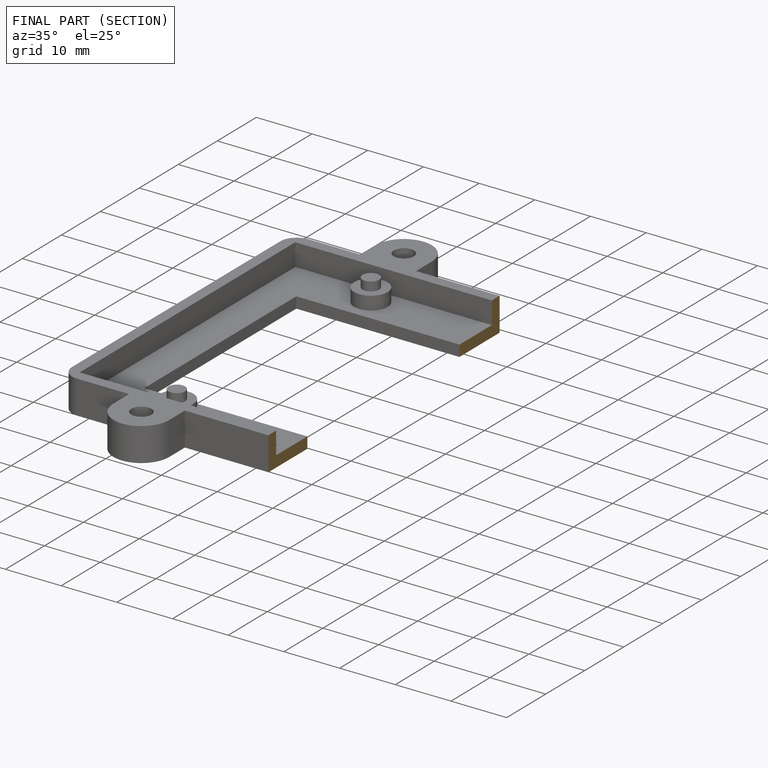
[diagram: finished part — half-section view (interior)]
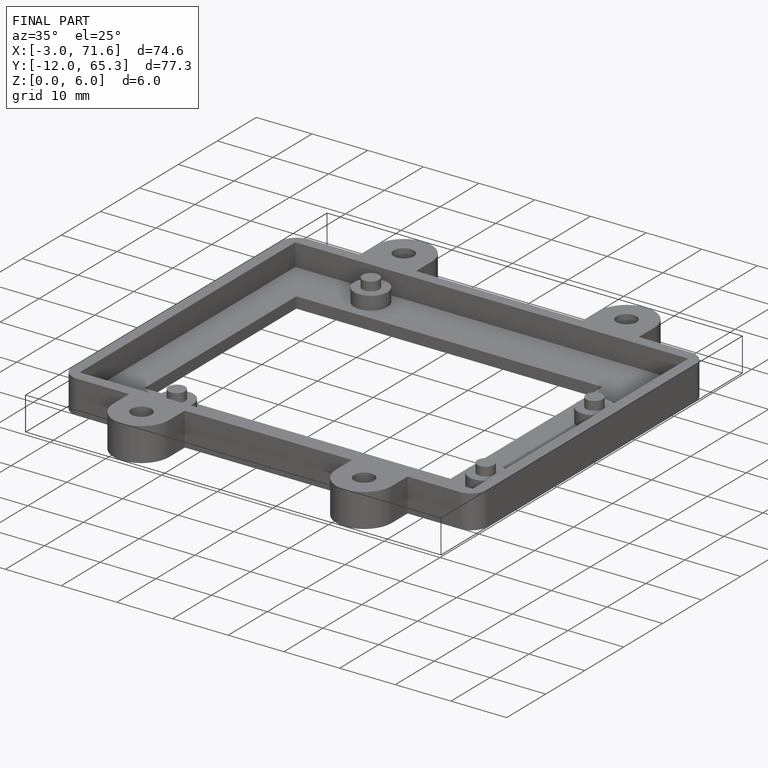
[diagram: finished part — iso view with bounding-box wireframe]
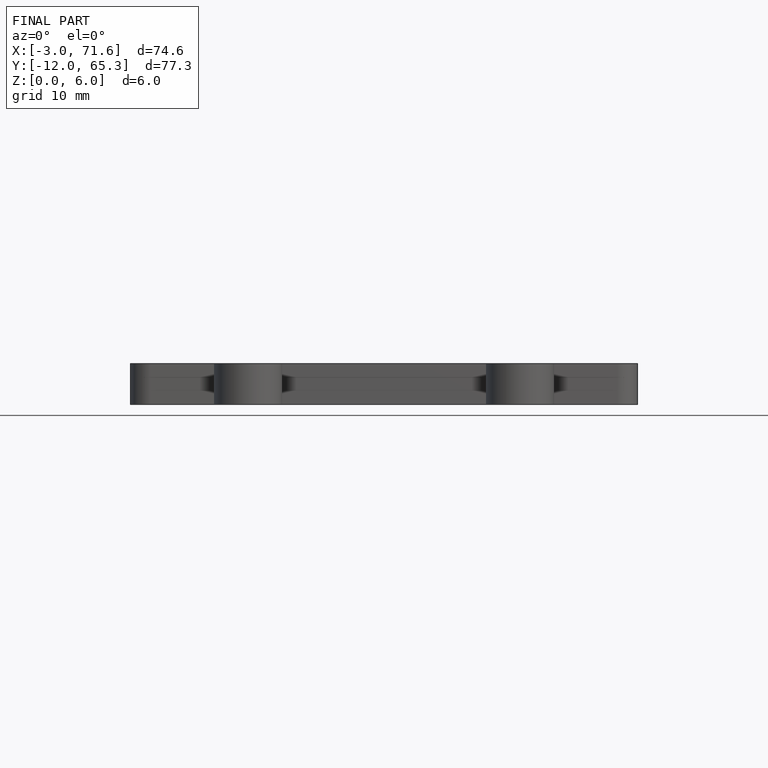
[diagram: finished part — front view with bounding-box wireframe]
